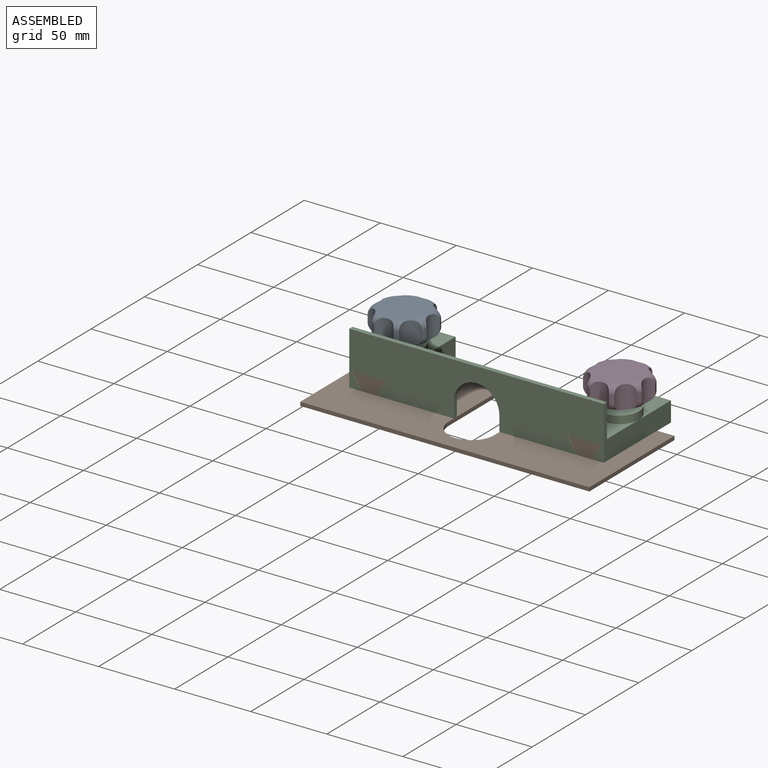
[diagram: assembled view]
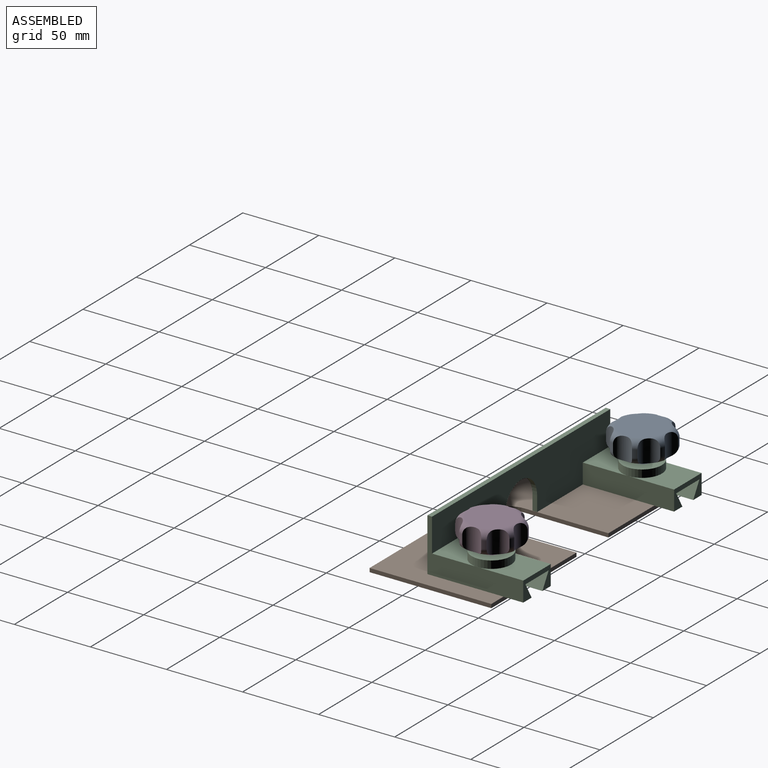
[diagram: assembled view, second angle]
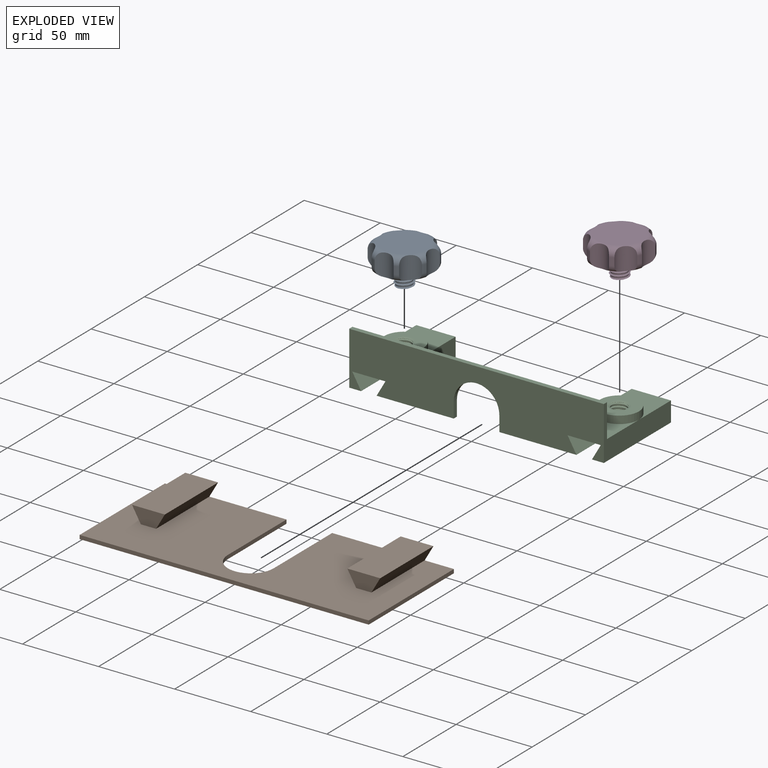
[diagram: exploded view]
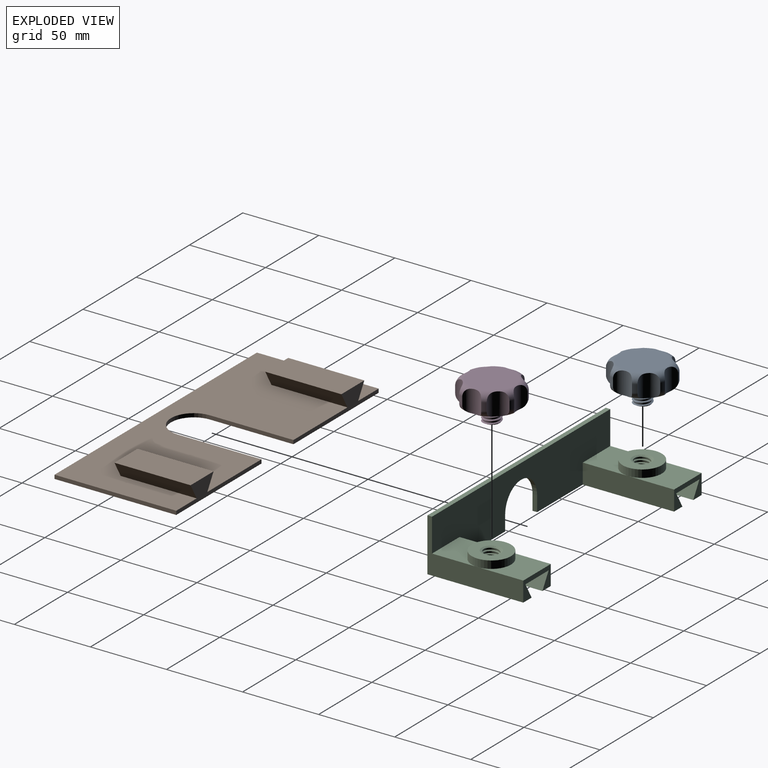
[diagram: exploded view, second angle]
ASSEMBLY  parts=4 mates=3
PART A: 24 faces, bbox 43.6x43.6x26 mm
  f0: cylinder r=20mm len=5mm, axis (0,0,-1), area 15mm2, adj f14,f15,f16,f23
  f1: cylinder r=20mm len=5mm, axis (0,0,-1), area 15mm2, adj f14,f15,f22,f23
  f2: cylinder r=20mm len=5mm, axis (0,0,-1), area 15mm2, adj f14,f15,f21,f22
  f3: cylinder r=20mm len=5mm, axis (0,0,-1), area 15mm2, adj f14,f15,f20,f21
  f4: cylinder r=20mm len=5mm, axis (0,0,-1), area 15mm2, adj f14,f15,f19,f20
  f5: cylinder r=20mm len=5mm, axis (0,0,-1), area 15mm2, adj f14,f15,f18,f19
  f6: cylinder r=20mm len=5mm, axis (0,0,-1), area 15mm2, adj f14,f15,f17,f18
  f7: cylinder r=20mm len=5mm, axis (0,0,-1), area 15mm2, adj f14,f15,f16,f17
  f8: cylinder r=5mm len=10mm, axis (0,0,-1), area 157.3mm2, adj f9,f11,f12,f13
  f9: plane 11.19x10.38mm, normal (0,0,-1), area 85.7mm2, adj f8,f12,f13
  f10: plane 30x30mm, normal (0,0,1), area 706.9mm2, adj f14
  f11: plane 30.32x30.32mm, normal (0,0,-1), area 621.1mm2, adj f8,f12,f13,f15
  f12: bspline ~13.55x11.73mm, area 170.9mm2, adj f8,f9,f11,f13
  f13: bspline ~13.55x11.73mm, area 170.8mm2, adj f8,f9,f11,f12
  f14: torus R=15mm, axis (0,0,1), area 356mm2, adj f0,f1,f2,f3,f4,f5,f6,f7
  f15: torus R=15mm, axis (0,0,-1), area 356mm2, adj f0,f1,f2,f3,f4,f5,f6,f7
  f16: cylinder r=8mm len=14.8mm, axis (0,0,1), area 188.3mm2, adj f0,f7,f14,f15
  f17: cylinder r=8mm len=14.8mm, axis (0,0,1), area 188.3mm2, adj f6,f7,f14,f15
  f18: cylinder r=8mm len=14.8mm, axis (0,0,1), area 188.3mm2, adj f5,f6,f14,f15
  f19: cylinder r=8mm len=14.8mm, axis (0,0,1), area 188.3mm2, adj f4,f5,f14,f15
  f20: cylinder r=8mm len=14.8mm, axis (0,0,1), area 188.3mm2, adj f3,f4,f14,f15
  f21: cylinder r=8mm len=14.8mm, axis (0,0,1), area 188.3mm2, adj f2,f3,f14,f15
  f22: cylinder r=8mm len=14.8mm, axis (0,0,1), area 188.3mm2, adj f1,f2,f14,f15
  f23: cylinder r=8mm len=14.8mm, axis (0,0,1), area 188.3mm2, adj f0,f1,f14,f15
PART B: 98 faces, bbox 190x80x14.5 mm
  f0: plane 190x80mm, normal (0,0,1), area 12196.6mm2, adj f1,f2,f3,f4,f5,f6,f7,f8
  f1: plane 80x2.5mm, normal (-1,0,0), area 200mm2, adj f0,f2,f8,f9
  f2: plane 190x2.5mm, normal (0,-1,0), area 475mm2, adj f0,f1,f3,f9
  f3: plane 80x2.5mm, normal (1,0,0), area 200mm2, adj f0,f2,f4,f9
  f4: plane 80x12.5mm, normal (0,1,0), area 357.7mm2, adj f0,f3,f5,f9,f94,f96,f97
  f5: plane 55x2.5mm, normal (-1,0,0), area 137.5mm2, adj f0,f4,f6,f9
  f6: cylinder r=15mm len=30mm, axis (0,0,-1), area 117.8mm2, adj f0,f5,f7,f9
  f7: plane 55x2.5mm, normal (1,0,0), area 137.5mm2, adj f0,f6,f8,f9
  f8: plane 80x12.5mm, normal (0,1,0), area 357.7mm2, adj f0,f1,f7,f9,f90,f91,f92
  f9: plane 190x80mm, normal (0,0,-1), area 12872.6mm2, adj f1,f2,f3,f4,f5,f6,f7,f8
  f10: plane 4.5x2mm, normal (0,-0.98,-0.17), area 8.4mm2, adj f9,f11,f13,f14
  f11: plane 4.5x2mm, normal (-0.98,0,-0.17), area 8.4mm2, adj f9,f10,f12,f14
  f12: plane 4.5x2mm, normal (0,0.98,-0.17), area 8.4mm2, adj f9,f11,f13,f14
  f13: plane 4.5x2mm, normal (0.98,0,-0.17), area 8.4mm2, adj f9,f10,f12,f14
  f14: plane 3.79x3.79mm, normal (0,0,-1), area 14.4mm2, adj f10,f11,f12,f13
  f15: plane 4.5x2mm, normal (0,-0.98,-0.17), area 8.4mm2, adj f9,f16,f18,f19
  f16: plane 4.5x2mm, normal (-0.98,0,-0.17), area 8.4mm2, adj f9,f15,f17,f19
  f17: plane 4.5x2mm, normal (0,0.98,-0.17), area 8.4mm2, adj f9,f16,f18,f19
  f18: plane 4.5x2mm, normal (0.98,0,-0.17), area 8.4mm2, adj f9,f15,f17,f19
  f19: plane 3.79x3.79mm, normal (0,0,-1), area 14.4mm2, adj f15,f16,f17,f18
  f20: plane 4.5x2mm, normal (0,-0.98,-0.17), area 8.4mm2, adj f9,f21,f23,f24
  f21: plane 4.5x2mm, normal (-0.98,0,-0.17), area 8.4mm2, adj f9,f20,f22,f24
  f22: plane 4.5x2mm, normal (0,0.98,-0.17), area 8.4mm2, adj f9,f21,f23,f24
  f23: plane 4.5x2mm, normal (0.98,0,-0.17), area 8.4mm2, adj f9,f20,f22,f24
  f24: plane 3.79x3.79mm, normal (0,0,-1), area 14.4mm2, adj f20,f21,f22,f23
  f25: plane 4.5x2mm, normal (0,-0.98,-0.17), area 8.4mm2, adj f9,f26,f28,f29
  f26: plane 4.5x2mm, normal (-0.98,0,-0.17), area 8.4mm2, adj f9,f25,f27,f29
  f27: plane 4.5x2mm, normal (0,0.98,-0.17), area 8.4mm2, adj f9,f26,f28,f29
  f28: plane 4.5x2mm, normal (0.98,0,-0.17), area 8.4mm2, adj f9,f25,f27,f29
  f29: plane 3.79x3.79mm, normal (0,0,-1), area 14.4mm2, adj f25,f26,f27,f28
  f30: plane 4.5x2mm, normal (0,-0.98,-0.17), area 8.4mm2, adj f9,f31,f33,f34
  f31: plane 4.5x2mm, normal (-0.98,0,-0.17), area 8.4mm2, adj f9,f30,f32,f34
  f32: plane 4.5x2mm, normal (0,0.98,-0.17), area 8.4mm2, adj f9,f31,f33,f34
  f33: plane 4.5x2mm, normal (0.98,0,-0.17), area 8.4mm2, adj f9,f30,f32,f34
  f34: plane 3.79x3.79mm, normal (0,0,-1), area 14.4mm2, adj f30,f31,f32,f33
  f35: plane 4.5x2mm, normal (0,-0.98,-0.17), area 8.4mm2, adj f9,f36,f38,f39
  f36: plane 4.5x2mm, normal (-0.98,0,-0.17), area 8.4mm2, adj f9,f35,f37,f39
  f37: plane 4.5x2mm, normal (0,0.98,-0.17), area 8.4mm2, adj f9,f36,f38,f39
  f38: plane 4.5x2mm, normal (0.98,0,-0.17), area 8.4mm2, adj f9,f35,f37,f39
  f39: plane 3.79x3.79mm, normal (0,0,-1), area 14.4mm2, adj f35,f36,f37,f38
  f40: plane 4.5x2mm, normal (0,-0.98,-0.17), area 8.4mm2, adj f9,f41,f43,f44
  f41: plane 4.5x2mm, normal (-0.98,0,-0.17), area 8.4mm2, adj f9,f40,f42,f44
  f42: plane 4.5x2mm, normal (0,0.98,-0.17), area 8.4mm2, adj f9,f41,f43,f44
  f43: plane 4.5x2mm, normal (0.98,0,-0.17), area 8.4mm2, adj f9,f40,f42,f44
  f44: plane 3.79x3.79mm, normal (0,0,-1), area 14.4mm2, adj f40,f41,f42,f43
  f45: plane 4.5x2mm, normal (0,-0.98,-0.17), area 8.4mm2, adj f9,f46,f48,f49
  f46: plane 4.5x2mm, normal (-0.98,0,-0.17), area 8.4mm2, adj f9,f45,f47,f49
  f47: plane 4.5x2mm, normal (0,0.98,-0.17), area 8.4mm2, adj f9,f46,f48,f49
  f48: plane 4.5x2mm, normal (0.98,0,-0.17), area 8.4mm2, adj f9,f45,f47,f49
  f49: plane 3.79x3.79mm, normal (0,0,-1), area 14.4mm2, adj f45,f46,f47,f48
  f50: plane 4.5x2mm, normal (0,-0.98,-0.17), area 8.4mm2, adj f9,f51,f53,f54
  f51: plane 4.5x2mm, normal (-0.98,0,-0.17), area 8.4mm2, adj f9,f50,f52,f54
  f52: plane 4.5x2mm, normal (0,0.98,-0.17), area 8.4mm2, adj f9,f51,f53,f54
  f53: plane 4.5x2mm, normal (0.98,0,-0.17), area 8.4mm2, adj f9,f50,f52,f54
  f54: plane 3.79x3.79mm, normal (0,0,-1), area 14.4mm2, adj f50,f51,f52,f53
  f55: plane 4.5x2mm, normal (0,-0.98,-0.17), area 8.4mm2, adj f9,f56,f58,f59
  f56: plane 4.5x2mm, normal (-0.98,0,-0.17), area 8.4mm2, adj f9,f55,f57,f59
  f57: plane 4.5x2mm, normal (0,0.98,-0.17), area 8.4mm2, adj f9,f56,f58,f59
  f58: plane 4.5x2mm, normal (0.98,0,-0.17), area 8.4mm2, adj f9,f55,f57,f59
  f59: plane 3.79x3.79mm, normal (0,0,-1), area 14.4mm2, adj f55,f56,f57,f58
  f60: plane 4.5x2mm, normal (0,-0.98,-0.17), area 8.4mm2, adj f9,f61,f63,f64
  f61: plane 4.5x2mm, normal (-0.98,0,-0.17), area 8.4mm2, adj f9,f60,f62,f64
  f62: plane 4.5x2mm, normal (0,0.98,-0.17), area 8.4mm2, adj f9,f61,f63,f64
  f63: plane 4.5x2mm, normal (0.98,0,-0.17), area 8.4mm2, adj f9,f60,f62,f64
  f64: plane 3.79x3.79mm, normal (0,0,-1), area 14.4mm2, adj f60,f61,f62,f63
  f65: plane 4.5x2mm, normal (0,-0.98,-0.17), area 8.4mm2, adj f9,f66,f68,f69
  f66: plane 4.5x2mm, normal (-0.98,0,-0.17), area 8.4mm2, adj f9,f65,f67,f69
  f67: plane 4.5x2mm, normal (0,0.98,-0.17), area 8.4mm2, adj f9,f66,f68,f69
  f68: plane 4.5x2mm, normal (0.98,0,-0.17), area 8.4mm2, adj f9,f65,f67,f69
  f69: plane 3.79x3.79mm, normal (0,0,-1), area 14.4mm2, adj f65,f66,f67,f68
  f70: plane 4.5x2mm, normal (0,-0.98,-0.17), area 8.4mm2, adj f9,f71,f73,f74
  f71: plane 4.5x2mm, normal (-0.98,0,-0.17), area 8.4mm2, adj f9,f70,f72,f74
  f72: plane 4.5x2mm, normal (0,0.98,-0.17), area 8.4mm2, adj f9,f71,f73,f74
  f73: plane 4.5x2mm, normal (0.98,0,-0.17), area 8.4mm2, adj f9,f70,f72,f74
  f74: plane 3.79x3.79mm, normal (0,0,-1), area 14.4mm2, adj f70,f71,f72,f73
  f75: plane 4.5x2mm, normal (0,-0.98,-0.17), area 8.4mm2, adj f9,f76,f78,f79
  f76: plane 4.5x2mm, normal (-0.98,0,-0.17), area 8.4mm2, adj f9,f75,f77,f79
  f77: plane 4.5x2mm, normal (0,0.98,-0.17), area 8.4mm2, adj f9,f76,f78,f79
  f78: plane 4.5x2mm, normal (0.98,0,-0.17), area 8.4mm2, adj f9,f75,f77,f79
  f79: plane 3.79x3.79mm, normal (0,0,-1), area 14.4mm2, adj f75,f76,f77,f78
  f80: plane 4.5x2mm, normal (0,-0.98,-0.17), area 8.4mm2, adj f9,f81,f83,f84
  f81: plane 4.5x2mm, normal (-0.98,0,-0.17), area 8.4mm2, adj f9,f80,f82,f84
  f82: plane 4.5x2mm, normal (0,0.98,-0.17), area 8.4mm2, adj f9,f81,f83,f84
  f83: plane 4.5x2mm, normal (0.98,0,-0.17), area 8.4mm2, adj f9,f80,f82,f84
  f84: plane 3.79x3.79mm, normal (0,0,-1), area 14.4mm2, adj f80,f81,f82,f83
  f85: plane 4.5x2mm, normal (0,-0.98,-0.17), area 8.4mm2, adj f9,f86,f88,f89
  f86: plane 4.5x2mm, normal (-0.98,0,-0.17), area 8.4mm2, adj f9,f85,f87,f89
  f87: plane 4.5x2mm, normal (0,0.98,-0.17), area 8.4mm2, adj f9,f86,f88,f89
  f88: plane 4.5x2mm, normal (0.98,0,-0.17), area 8.4mm2, adj f9,f85,f87,f89
  f89: plane 3.79x3.79mm, normal (0,0,-1), area 14.4mm2, adj f85,f86,f87,f88
  f90: plane 50x10mm, normal (-0.87,0,-0.5), area 577.4mm2, adj f0,f8,f92,f93
  f91: plane 50x10mm, normal (0.87,0,-0.5), area 577.4mm2, adj f0,f8,f92,f93
  f92: plane 50x21.55mm, normal (0,0,1), area 1077.4mm2, adj f8,f90,f91,f93
  f93: plane 21.55x10mm, normal (0,-1,0), area 157.7mm2, adj f0,f90,f91,f92
  f94: plane 50x10mm, normal (0.87,0,-0.5), area 577.4mm2, adj f0,f4,f95,f96
  f95: plane 21.55x10mm, normal (0,-1,0), area 157.7mm2, adj f0,f94,f96,f97
  f96: plane 50x21.55mm, normal (0,0,1), area 1077.4mm2, adj f4,f94,f95,f97
  f97: plane 50x10mm, normal (-0.87,0,-0.5), area 577.4mm2, adj f0,f4,f95,f96
PART C: 42 faces, bbox 167.4x63x35 mm
  f0: plane 63x21.82mm, normal (0,0,-1), area 1286.7mm2, adj f2,f16,f17,f22,f28,f39,f40
  f1: cylinder r=5mm len=10mm, axis (0,0,-1), area 114.6mm2, adj f2,f34,f39,f40,f41
  f2: cone r=5.3mm half-angle=45deg, axis (0,0,-1), area 11.9mm2, adj f0,f1,f39,f40
  f3: plane 63x21.82mm, normal (0,0,-1), area 1286.7mm2, adj f4,f9,f10,f22,f25,f36,f37
  f4: cone r=5mm half-angle=45deg, axis (0,0,-1), area 11.9mm2, adj f3,f29,f36,f37
  f5: plane 30x25.82mm, normal (0,0,1), area 512.8mm2, adj f19,f23,f27,f32
  f6: plane 30x25.82mm, normal (0,0,1), area 512.8mm2, adj f21,f24,f25,f30
  f7: plane 30x25.82mm, normal (0,0,1), area 512.8mm2, adj f21,f23,f24,f30
  f8: plane 63x7.82mm, normal (0,0,-1), area 492.6mm2, adj f9,f21,f22,f25
  f9: plane 63x10.08mm, normal (0.87,0,0.5), area 733.3mm2, adj f3,f8,f22,f25
  f10: plane 63x10.08mm, normal (-0.87,0,0.5), area 733.3mm2, adj f3,f11,f22,f25
  f11: plane 63x50.68mm, normal (0,0,-1), area 621.2mm2, adj f10,f12,f22,f23,f24,f25
  f12: plane 10x3mm, normal (1,0,0), area 30mm2, adj f11,f13,f22,f23
  f13: cylinder r=15mm len=30mm, axis (0,1,0), area 141.4mm2, adj f12,f14,f22,f23
  f14: plane 10x3mm, normal (-1,0,0), area 30mm2, adj f13,f15,f22,f23
  f15: plane 63x50.68mm, normal (0,0,-1), area 621.2mm2, adj f14,f16,f22,f23,f27,f28
  f16: plane 63x10.08mm, normal (0.87,0,0.5), area 733.3mm2, adj f0,f15,f22,f28
  f17: plane 63x10.08mm, normal (-0.87,0,0.5), area 733.3mm2, adj f0,f18,f22,f28
  f18: plane 63x7.82mm, normal (0,0,-1), area 492.6mm2, adj f17,f19,f22,f28
  f19: plane 63x35mm, normal (1,0,0), area 889.8mm2, adj f5,f18,f20,f22,f23,f26,f28
  f20: plane 167.37x3mm, normal (0,0,1), area 502.1mm2, adj f19,f21,f22,f23
  f21: plane 63x35mm, normal (-1,0,0), area 889.8mm2, adj f6,f7,f8,f20,f22,f23,f25
  f22: plane 167.37x35mm, normal (0,-1,0), area 4881.9mm2, adj f0,f3,f8,f9,f10,f11,f12,f13
  f23: plane 167.37x35mm, normal (0,1,0), area 4529mm2, adj f5,f7,f11,f12,f13,f14,f15,f19
  f24: plane 60x13.08mm, normal (1,0,0), area 784.8mm2, adj f6,f7,f11,f23,f25
  f25: plane 25.82x13.08mm, normal (0,1,0), area 176.5mm2, adj f3,f6,f8,f9,f10,f11,f21,f24
  f26: plane 30x25.82mm, normal (0,0,1), area 512.8mm2, adj f19,f27,f28,f32
  f27: plane 60x13.08mm, normal (-1,0,0), area 784.8mm2, adj f5,f15,f23,f26,f28
  f28: plane 25.82x13.08mm, normal (0,1,0), area 176.5mm2, adj f0,f15,f16,f17,f18,f19,f26,f27
  f29: cylinder r=5mm len=10mm, axis (0,0,-1), area 114.6mm2, adj f4,f35,f36,f37,f38
  f30: cylinder r=12.91mm len=25.82mm, axis (0,0,-1), area 405.6mm2, adj f6,f7,f31
  f31: plane 25.82x25.82mm, normal (0,0,1), area 399.1mm2, adj f30,f35
  f32: cylinder r=12.91mm len=25.82mm, axis (0,0,-1), area 405.6mm2, adj f5,f26,f33
  f33: plane 25.82x25.82mm, normal (0,0,1), area 399.1mm2, adj f32,f34
  f34: cone r=6.3mm half-angle=67.5deg, axis (0,0,1), area 42.2mm2, adj f1,f33,f40,f41
  f35: cone r=6.3mm half-angle=67.5deg, axis (0,0,1), area 42.2mm2, adj f29,f31,f37,f38
  f36: plane 0.8x0.7mm, normal (0.59,0.81,0), area 0.4mm2, adj f3,f4,f29,f37,f38
  f37: bspline ~13.55x11.73mm, area 128.3mm2, adj f3,f4,f29,f35,f36,f38
  f38: bspline ~13.55x11.73mm, area 121.4mm2, adj f29,f35,f36,f37
  f39: plane 0.8x0.7mm, normal (0.59,0.81,0), area 0.4mm2, adj f0,f1,f2,f40,f41
  f40: bspline ~13.55x11.73mm, area 128.3mm2, adj f0,f1,f2,f34,f39,f41
  f41: bspline ~13.55x11.73mm, area 121.4mm2, adj f1,f34,f39,f40
PART D: same geometry as A
PLACE A t=(-0.14,38.36,-17.58)mm
PLACE B t=(0,15,-2.5)mm
PLACE C t=(-0.14,38,-2.58)mm
PLACE D t=(141.41,38.36,-17.58)mm
MATE slider B.f93 <-> C.f22  axis (0,-1,0) through (-60,5,10)mm
MATE slider D.f9 <-> C.f1  axis (0,0,-1) through (70.63,38,13)mm
MATE slider A.f9 <-> C.f4  axis (0,0,-1) through (-70.91,38,13)mm
